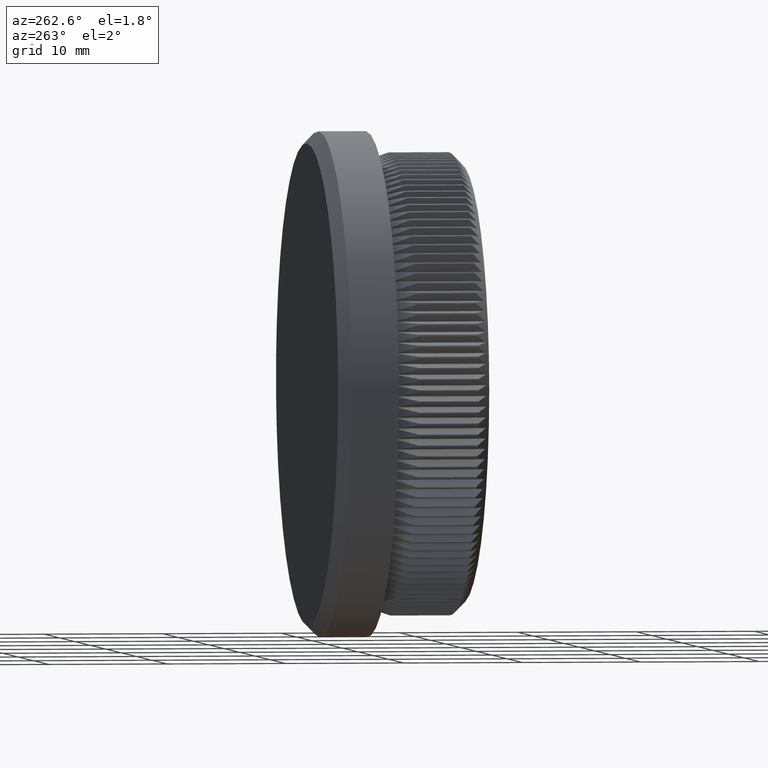
[diagram: clean part render]
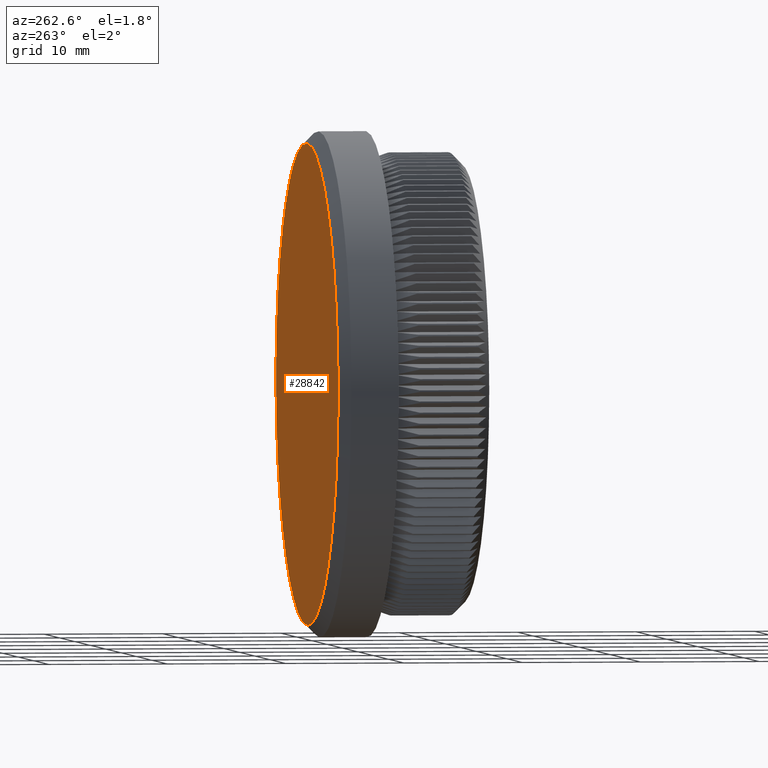
[diagram: same view with one face highlighted and labeled with its STEP entity id]
A machine part, auxiliary view. The second image highlights one B-rep face of the part: STEP entity #28842.
In plain terms, the highlighted planar face has unit normal (0, 1, 0).
Its self-contained STEP definition (entity closure, byte-faithful):
#2353 = PLANE ( 'NONE',  #22567 ) ;
#2361 = CARTESIAN_POINT ( 'NONE',  ( 2.535018874235020400E-015, 13.00000000000000000, 20.19999999999999200 ) ) ;
#3790 = AXIS2_PLACEMENT_3D ( 'NONE', #27140, #6439, #20345 ) ;
#4860 = EDGE_CURVE ( 'NONE', #15226, #19214, #28050, .T. ) ;
#4992 = DIRECTION ( 'NONE',  ( 0.0000000000000000000, -0.0000000000000000000, 1.000000000000000000 ) ) ;
#6439 = DIRECTION ( 'NONE',  ( 0.0000000000000000000, 1.000000000000000000, 0.0000000000000000000 ) ) ;
#10649 = CIRCLE ( 'NONE', #3790, 20.19999999999999200 ) ;
#11570 = CARTESIAN_POINT ( 'NONE',  ( 0.0000000000000000000, 13.00000000000000000, 0.0000000000000000000 ) ) ;
#11721 = DIRECTION ( 'NONE',  ( 0.0000000000000000000, 1.000000000000000000, 0.0000000000000000000 ) ) ;
#15226 = VERTEX_POINT ( 'NONE', #2361 ) ;
#17035 = EDGE_CURVE ( 'NONE', #19214, #15226, #10649, .T. ) ;
#18603 = DIRECTION ( 'NONE',  ( 0.0000000000000000000, 1.000000000000000000, 0.0000000000000000000 ) ) ;
#18865 = CARTESIAN_POINT ( 'NONE',  ( 0.0000000000000000000, 13.00000000000000000, -20.19999999999999200 ) ) ;
#19214 = VERTEX_POINT ( 'NONE', #18865 ) ;
#20345 = DIRECTION ( 'NONE',  ( 0.0000000000000000000, 0.0000000000000000000, 1.000000000000000000 ) ) ;
#20742 = ORIENTED_EDGE ( 'NONE', *, *, #4860, .T. ) ;
#22094 = AXIS2_PLACEMENT_3D ( 'NONE', #28079, #11721, #28268 ) ;
#22567 = AXIS2_PLACEMENT_3D ( 'NONE', #11570, #18603, #4992 ) ;
#22830 = FACE_OUTER_BOUND ( 'NONE', #25618, .T. ) ;
#25618 = EDGE_LOOP ( 'NONE', ( #26811, #20742 ) ) ;
#26811 = ORIENTED_EDGE ( 'NONE', *, *, #17035, .T. ) ;
#27140 = CARTESIAN_POINT ( 'NONE',  ( 0.0000000000000000000, 13.00000000000000000, 0.0000000000000000000 ) ) ;
#28050 = CIRCLE ( 'NONE', #22094, 20.19999999999999200 ) ;
#28079 = CARTESIAN_POINT ( 'NONE',  ( 0.0000000000000000000, 13.00000000000000000, 0.0000000000000000000 ) ) ;
#28268 = DIRECTION ( 'NONE',  ( 0.0000000000000000000, 0.0000000000000000000, 1.000000000000000000 ) ) ;
#28842 = ADVANCED_FACE ( 'NONE', ( #22830 ), #2353, .T. ) ;